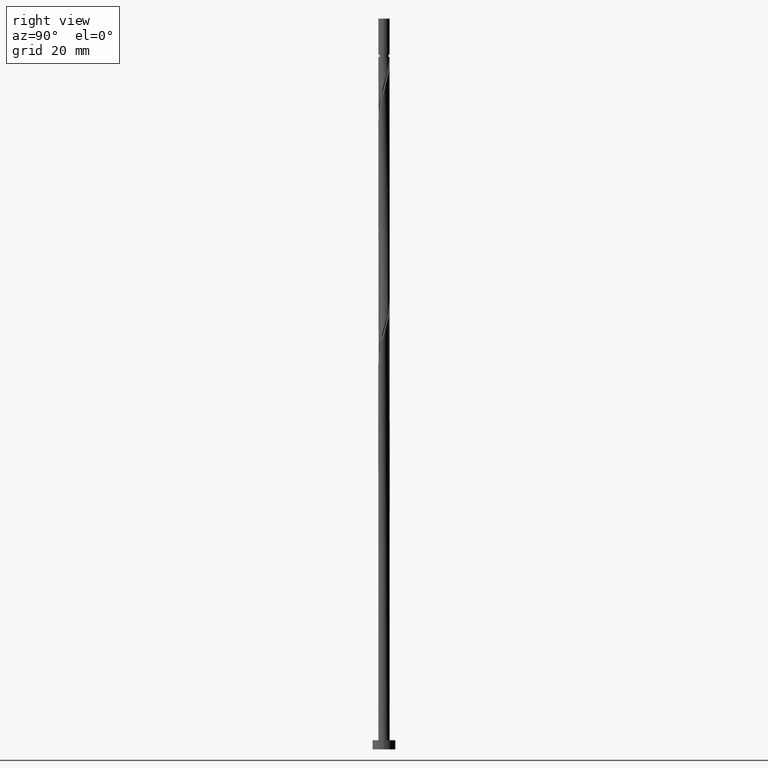
[diagram: clean part render]
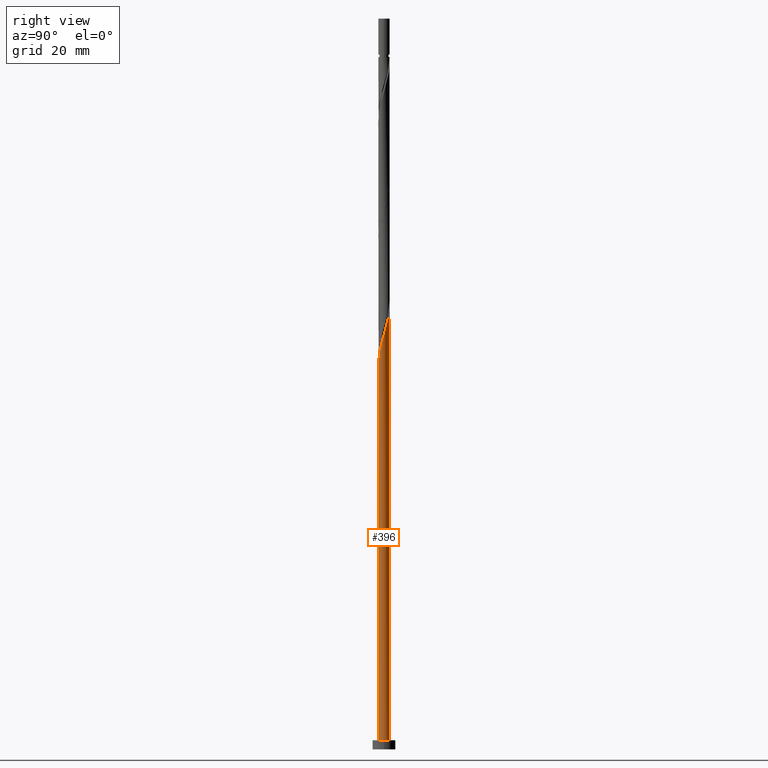
[diagram: same view with one face highlighted and labeled with its STEP entity id]
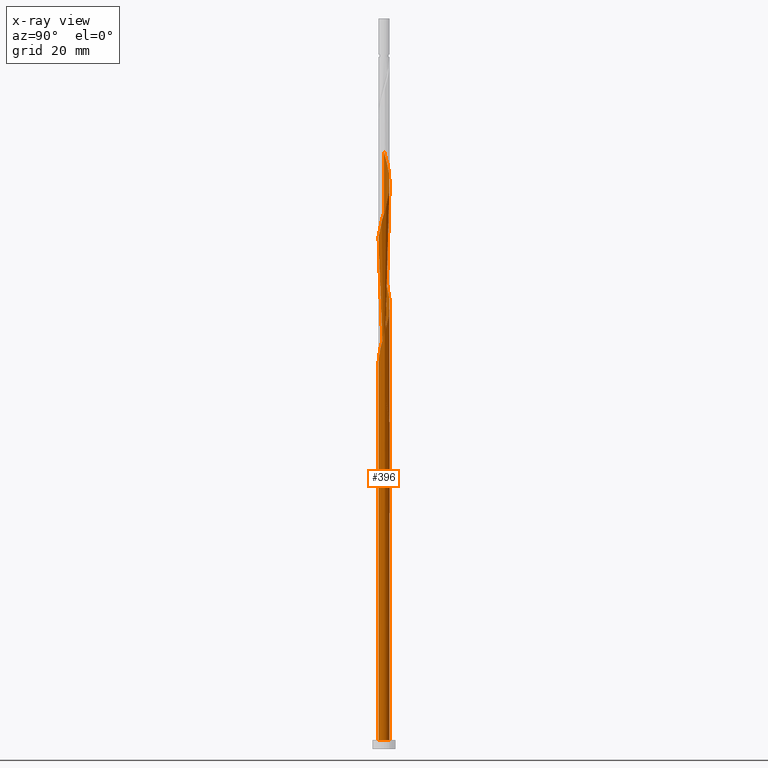
[diagram: x-ray of the same camera — body ghosted, the highlighted face saturated]
A machine part, right view. The second image highlights one B-rep face of the part: STEP entity #396.
The next image is the same camera in x-ray: the body ghosted, the highlighted face saturated — about 0% of this face is hidden behind the body in this view.
In plain terms, the highlighted cylindrical surface (bore or boss wall) has radius 1.25 mm, axis along (-0, -0, -1).
Its self-contained STEP definition (entity closure, byte-faithful):
#1 = DIRECTION ( 'NONE',  ( -0.000000000000000000, -0.000000000000000000, -1.000000000000000000 ) ) ;
#5 = CARTESIAN_POINT ( 'NONE',  ( -0.07261844913281328973, 1.260764399063406760, 97.67212520550600630 ) ) ;
#20 = CYLINDRICAL_SURFACE ( 'NONE', #1409, 1.250000000000000000 ) ;
#29 = CARTESIAN_POINT ( 'NONE',  ( -0.4530258272359607985, -1.165018283057042359, 109.1872767206574935 ) ) ;
#40 = CARTESIAN_POINT ( 'NONE',  ( 0.9052671870560901057, 0.8805064617251386894, 120.7024282358090090 ) ) ;
#51 = CARTESIAN_POINT ( 'NONE',  ( 1.088687779416463108, -0.6142140660626842497, 115.2478827812635558 ) ) ;
#62 = CARTESIAN_POINT ( 'NONE',  ( -1.116664842001303004, -0.5897965240134723786, 106.1569736903544623 ) ) ;
#65 = ORIENTED_EDGE ( 'NONE', *, *, #1062, .T. ) ;
#70 = CARTESIAN_POINT ( 'NONE',  ( 0.07261844913281340075, -1.260764399063406538, 111.0054585388393349 ) ) ;
#88 = CARTESIAN_POINT ( 'NONE',  ( -0.2487468592766557407, 1.225000000000001643, 124.9448524782332868 ) ) ;
#93 = CARTESIAN_POINT ( 'NONE',  ( 0.000000000000000000, 0.000000000000000000, 2.000000000000000000 ) ) ;
#97 = CARTESIAN_POINT ( 'NONE',  ( -0.2855214860250658293, -1.230153563632689906, 83.12667066005145955 ) ) ;
#105 = CARTESIAN_POINT ( 'NONE',  ( 1.176998429982672123, -0.4576843944450087465, 89.18727672065755030 ) ) ;
#116 = CARTESIAN_POINT ( 'NONE',  ( -0.5837932458153773929, 1.105298804007473379, 99.49030702368780510 ) ) ;
#131 = CARTESIAN_POINT ( 'NONE',  ( 0.6205301684468547130, 1.099883002481394367, 95.24788278126357000 ) ) ;
#132 = VERTEX_POINT ( 'NONE', #449 ) ;
#147 = CARTESIAN_POINT ( 'NONE',  ( -0.4248752694204985803, 1.189235600936596304, 72.21757975096052462 ) ) ;
#155 = CARTESIAN_POINT ( 'NONE',  ( 0.2855214860250660514, 1.230153563632689906, 123.1266706600514169 ) ) ;
#157 = ORIENTED_EDGE ( 'NONE', *, *, #1466, .T. ) ;
#161 = CARTESIAN_POINT ( 'NONE',  ( -0.8715441755302556492, 0.8960528723793547146, 74.03576156914233763 ) ) ;
#173 = CARTESIAN_POINT ( 'NONE',  ( -0.2487468592766556852, 1.225000000000001643, 71.61151914489992976 ) ) ;
#176 = CARTESIAN_POINT ( 'NONE',  ( 1.000377128850254982, -0.7707437376803588647, 114.6418221752029609 ) ) ;
#180 = DIRECTION ( 'NONE',  ( -0.000000000000000000, -0.000000000000000000, -1.000000000000000000 ) ) ;
#181 = CARTESIAN_POINT ( 'NONE',  ( -1.250000000000001776, 0.1431611592314025738, 76.94277137929441324 ) ) ;
#182 = CARTESIAN_POINT ( 'NONE',  ( -1.088687779416463108, 0.6142140660626840276, 101.9145494479302414 ) ) ;
#193 = DIRECTION ( 'NONE',  ( 1.000000000000000000, 0.000000000000000000, 0.000000000000000000 ) ) ;
#210 = CARTESIAN_POINT ( 'NONE',  ( 0.000000000000000000, 0.000000000000000000, 71.61151914489992976 ) ) ;
#212 = CARTESIAN_POINT ( 'NONE',  ( -0.9052671870560894396, -0.8805064617251390224, 80.70242823580903746 ) ) ;
#214 = CARTESIAN_POINT ( 'NONE',  ( 0.07261844913281356728, 1.260764399063405428, 72.21757975096055304 ) ) ;
#234 = CARTESIAN_POINT ( 'NONE',  ( -1.250000000000000000, 0.000000000000000000, 160.0000000000000000 ) ) ;
#242 = CARTESIAN_POINT ( 'NONE',  ( 0.7628986777514719098, 0.9901947321032669169, 94.64182217520296092 ) ) ;
#266 = CARTESIAN_POINT ( 'NONE',  ( 1.177130897255199482, 0.4205506517973474079, 118.8842464176272102 ) ) ;
#280 = VERTEX_POINT ( 'NONE', #602 ) ;
#288 = CARTESIAN_POINT ( 'NONE',  ( -0.2855214860250658293, -1.230153563632689906, 109.7933373267181025 ) ) ;
#294 = CARTESIAN_POINT ( 'NONE',  ( -1.250000000000001776, -1.533074122108355734E-15, 77.42873133226569848 ) ) ;
#297 = CARTESIAN_POINT ( 'NONE',  ( -1.247931635353088931, -0.07187929802779864652, 104.3387918721726635 ) ) ;
#299 = EDGE_CURVE ( 'NONE', #863, #132, #1534, .T. ) ;
#310 = CARTESIAN_POINT ( 'NONE',  ( -1.247931635353088931, -0.07187929802779864652, 77.67212520550597787 ) ) ;
#315 = CARTESIAN_POINT ( 'NONE',  ( -1.250000000000001554, 2.206131053765682578E-16, 130.7620646655990413 ) ) ;
#334 = CARTESIAN_POINT ( 'NONE',  ( -1.217632374089876679, 0.2826152889853174588, 129.7933373267181310 ) ) ;
#337 = ORIENTED_EDGE ( 'NONE', *, *, #1403, .F. ) ;
#340 = CARTESIAN_POINT ( 'NONE',  ( -1.177130897255197484, 0.4205506517973472413, 77.67212520550599208 ) ) ;
#342 = CARTESIAN_POINT ( 'NONE',  ( 1.258266318197082123, -0.1075461835256256993, 90.39939793277872582 ) ) ;
#352 = DIRECTION ( 'NONE',  ( -0.000000000000000000, -0.000000000000000000, -1.000000000000000000 ) ) ;
#354 = CARTESIAN_POINT ( 'NONE',  ( 1.247931635353088931, 0.07187929802779849386, 91.00545853883934910 ) ) ;
#360 = CARTESIAN_POINT ( 'NONE',  ( 0.4530258272359601879, 1.165018283057042581, 95.85394338732417907 ) ) ;
#391 = CARTESIAN_POINT ( 'NONE',  ( 0.4248752694204984137, -1.189235600936596748, 112.2175797509605246 ) ) ;
#396 = ADVANCED_FACE ( 'NONE', ( #1204 ), #20, .T. ) ;
#423 = CARTESIAN_POINT ( 'NONE',  ( 0.2487468592766559072, -1.225000000000001643, 111.6115191448999155 ) ) ;
#432 = CARTESIAN_POINT ( 'NONE',  ( -1.088687779416463108, 0.6142140660626840276, 128.5812161145968844 ) ) ;
#448 = CARTESIAN_POINT ( 'NONE',  ( -0.8715441755302556492, 0.8960528723793547146, 127.3690949024756947 ) ) ;
#449 = CARTESIAN_POINT ( 'NONE',  ( -1.250000000000000000, -1.634032661856966110E-15, 79.12764029086747541 ) ) ;
#451 = AXIS2_PLACEMENT_3D ( 'NONE', #676, #1020, #1012 ) ;
#458 = CARTESIAN_POINT ( 'NONE',  ( -1.010966014528694501, 0.7351514928693047013, 76.46000399338474551 ) ) ;
#461 = CARTESIAN_POINT ( 'NONE',  ( 0.5837932458153772819, -1.105298804007473601, 86.15697369035444808 ) ) ;
#465 = DIRECTION ( 'NONE',  ( -1.000000000000000000, 0.000000000000000000, 0.000000000000000000 ) ) ;
#474 = CARTESIAN_POINT ( 'NONE',  ( -1.250000000000001554, -0.03596940815477937120, 77.55082933698392367 ) ) ;
#482 = CARTESIAN_POINT ( 'NONE',  ( -0.8715441755302556492, 0.8960528723793547146, 100.7024282358090232 ) ) ;
#495 = CARTESIAN_POINT ( 'NONE',  ( -0.4248752694204985803, 1.189235600936596304, 98.88424641762719602 ) ) ;
#512 = CARTESIAN_POINT ( 'NONE',  ( -0.2487468592766557407, 1.225000000000001643, 98.27818581156660116 ) ) ;
#516 = CARTESIAN_POINT ( 'NONE',  ( -0.5837932458153773929, 1.105298804007473379, 72.82364035702117633 ) ) ;
#520 = CARTESIAN_POINT ( 'NONE',  ( 0.8715441755302556492, -0.8960528723793547146, 114.0357615691423661 ) ) ;
#528 = CARTESIAN_POINT ( 'NONE',  ( 0.1064515184461263669, 1.245458981348048333, 123.7327312661120544 ) ) ;
#540 = LINE ( 'NONE', #780, #983 ) ;
#547 = CARTESIAN_POINT ( 'NONE',  ( 0.5837932458153772819, -1.105298804007473601, 112.8236403570211195 ) ) ;
#564 = CARTESIAN_POINT ( 'NONE',  ( -1.000377128850254982, 0.7707437376803587537, 127.9751555085362895 ) ) ;
#572 = CARTESIAN_POINT ( 'NONE',  ( -1.176998429982671679, 0.4576843944450091350, 129.1872767206575077 ) ) ;
#580 = CARTESIAN_POINT ( 'NONE',  ( -0.4248752694204985803, 1.189235600936596304, 125.5509130842938674 ) ) ;
#582 = CARTESIAN_POINT ( 'NONE',  ( -0.1064515184461262004, -1.245458981348048333, 83.73273126611204020 ) ) ;
#585 = CARTESIAN_POINT ( 'NONE',  ( -0.7427112222102564276, 1.021362007078349787, 126.7630342964150998 ) ) ;
#602 = CARTESIAN_POINT ( 'NONE',  ( -1.250000000000000000, 0.000000000000000000, 2.000000000000000000 ) ) ;
#632 = ORIENTED_EDGE ( 'NONE', *, *, #994, .F. ) ;
#636 = CARTESIAN_POINT ( 'NONE',  ( -1.088687779416463108, 0.6142140660626840276, 75.24788278126357000 ) ) ;
#642 = CARTESIAN_POINT ( 'NONE',  ( -1.250000000000001776, -1.533074122108355734E-15, 77.42873133226569848 ) ) ;
#644 = CARTESIAN_POINT ( 'NONE',  ( -1.217632374089876679, 0.2826152889853174588, 103.1266706600514311 ) ) ;
#647 = VERTEX_POINT ( 'NONE', #669 ) ;
#650 = CARTESIAN_POINT ( 'NONE',  ( -1.000377128850254982, 0.7707437376803587537, 74.64182217520296092 ) ) ;
#653 = CARTESIAN_POINT ( 'NONE',  ( -1.237596952509095960, -0.2513047795812228258, 104.9448524782332584 ) ) ;
#663 = CARTESIAN_POINT ( 'NONE',  ( 1.247931635353088931, 0.07187929802779849386, 117.6721252055059921 ) ) ;
#667 = CARTESIAN_POINT ( 'NONE',  ( 0.2487468592766561293, 1.224999999999999423, 71.61151914489992976 ) ) ;
#669 = CARTESIAN_POINT ( 'NONE',  ( -0.2487468592766556852, 1.225000000000001643, 71.61151914489992976 ) ) ;
#672 = CARTESIAN_POINT ( 'NONE',  ( 1.217632374089876901, -0.2826152889853174033, 116.4600039933847881 ) ) ;
#676 = CARTESIAN_POINT ( 'NONE',  ( 0.000000000000000000, 0.000000000000000000, 2.000000000000000000 ) ) ;
#689 = EDGE_CURVE ( 'NONE', #647, #746, #1381, .T. ) ;
#702 = CARTESIAN_POINT ( 'NONE',  ( -1.010966014528696055, -0.7351514928693059225, 80.09636762974841417 ) ) ;
#707 = CARTESIAN_POINT ( 'NONE',  ( 1.000377128850254982, -0.7707437376803588647, 87.97515550853628952 ) ) ;
#725 = CARTESIAN_POINT ( 'NONE',  ( 0.9052671870560901057, 0.8805064617251386894, 94.03576156914235185 ) ) ;
#729 = CARTESIAN_POINT ( 'NONE',  ( 0.000000000000000000, 0.000000000000000000, 160.0000000000000000 ) ) ;
#745 = CARTESIAN_POINT ( 'NONE',  ( 0.2855214860250660514, 1.230153563632689906, 96.46000399338477393 ) ) ;
#746 = VERTEX_POINT ( 'NONE', #294 ) ;
#761 = CARTESIAN_POINT ( 'NONE',  ( 1.116664842001303004, 0.5897965240134721565, 119.4903070236878193 ) ) ;
#780 = CARTESIAN_POINT ( 'NONE',  ( -1.250000000000000000, 0.000000000000000000, 160.0000000000000000 ) ) ;
#795 = DIRECTION ( 'NONE',  ( 0.000000000000000000, -0.000000000000000000, -1.000000000000000000 ) ) ;
#804 = CARTESIAN_POINT ( 'NONE',  ( -0.9052671870560881073, 0.8805064617251381343, 75.85394338732417907 ) ) ;
#806 = ORIENTED_EDGE ( 'NONE', *, *, #689, .F. ) ;
#821 = CARTESIAN_POINT ( 'NONE',  ( -0.4530258272359594662, 1.165018283057040582, 74.03576156914233763 ) ) ;
#822 = CARTESIAN_POINT ( 'NONE',  ( -1.177130897255199482, -0.4205506517973475189, 78.88424641762719602 ) ) ;
#825 = CARTESIAN_POINT ( 'NONE',  ( -0.6205301684468541579, 1.099883002481392591, 74.64182217520296092 ) ) ;
#841 = CARTESIAN_POINT ( 'NONE',  ( 1.116664842001303004, 0.5897965240134721565, 92.82364035702114791 ) ) ;
#842 = AXIS2_PLACEMENT_3D ( 'NONE', #93, #1264, #193 ) ;
#862 = CARTESIAN_POINT ( 'NONE',  ( 0.4530258272359601879, 1.165018283057042581, 122.5206100539908505 ) ) ;
#863 = VERTEX_POINT ( 'NONE', #1492 ) ;
#867 = CARTESIAN_POINT ( 'NONE',  ( -0.7427112222102564276, 1.021362007078349787, 73.42970096308172856 ) ) ;
#870 = CARTESIAN_POINT ( 'NONE',  ( 1.176998429982672123, -0.4576843944450087465, 115.8539433873241364 ) ) ;
#894 = CARTESIAN_POINT ( 'NONE',  ( 1.237596952509095960, 0.2513047795812227148, 118.2781858115666012 ) ) ;
#908 = CARTESIAN_POINT ( 'NONE',  ( -0.2855214860250653852, 1.230153563632688574, 73.42970096308174277 ) ) ;
#911 = CARTESIAN_POINT ( 'NONE',  ( -1.250000000000001776, -1.533074122108355734E-15, 77.42873133226569848 ) ) ;
#913 = CARTESIAN_POINT ( 'NONE',  ( -0.7628986777514707995, 0.9901947321032651406, 75.24788278126354157 ) ) ;
#916 = CARTESIAN_POINT ( 'NONE',  ( -1.116664842001303004, -0.5897965240134723786, 79.49030702368780510 ) ) ;
#918 = EDGE_CURVE ( 'NONE', #280, #1056, #1451, .T. ) ;
#922 = CARTESIAN_POINT ( 'NONE',  ( -0.1064515184461258396, 1.245458981348045668, 72.82364035702114791 ) ) ;
#924 = CARTESIAN_POINT ( 'NONE',  ( 0.7427112222102564276, -1.021362007078349787, 86.76303429641508558 ) ) ;
#932 = CARTESIAN_POINT ( 'NONE',  ( 0.4248752694204984137, -1.189235600936596748, 85.55091308429386743 ) ) ;
#972 = CARTESIAN_POINT ( 'NONE',  ( 1.010966014528696499, 0.7351514928693054785, 120.0963676297484000 ) ) ;
#976 = CARTESIAN_POINT ( 'NONE',  ( -1.176998429982671679, 0.4576843944450091350, 75.85394338732416486 ) ) ;
#983 = VECTOR ( 'NONE', #180, 1000.000000000000000 ) ;
#990 = CARTESIAN_POINT ( 'NONE',  ( -0.07261844913281328973, 1.260764399063406760, 124.3387918721726635 ) ) ;
#994 = EDGE_CURVE ( 'NONE', #746, #280, #540, .T. ) ;
#1000 = CARTESIAN_POINT ( 'NONE',  ( -1.176998429982671679, 0.4576843944450091350, 102.5206100539908505 ) ) ;
#1009 = CARTESIAN_POINT ( 'NONE',  ( 0.7427112222102564276, -1.021362007078349787, 113.4297009630817143 ) ) ;
#1012 = DIRECTION ( 'NONE',  ( 1.000000000000000000, 0.000000000000000000, 0.000000000000000000 ) ) ;
#1017 = CARTESIAN_POINT ( 'NONE',  ( -1.116664842001301006, 0.5897965240134721565, 77.06606459944538301 ) ) ;
#1019 = ORIENTED_EDGE ( 'NONE', *, *, #299, .F. ) ;
#1020 = DIRECTION ( 'NONE',  ( 0.000000000000000000, 0.000000000000000000, 1.000000000000000000 ) ) ;
#1025 = CARTESIAN_POINT ( 'NONE',  ( -1.250000000000000222, 0.03596940815477767117, 79.00554228614926444 ) ) ;
#1041 = CARTESIAN_POINT ( 'NONE',  ( -0.5837932458153773929, 1.105298804007473379, 126.1569736903545049 ) ) ;
#1043 = CARTESIAN_POINT ( 'NONE',  ( 0.07261844913281340075, -1.260764399063406538, 84.33879187217264928 ) ) ;
#1044 = AXIS2_PLACEMENT_3D ( 'NONE', #210, #795, #465 ) ;
#1050 = CARTESIAN_POINT ( 'NONE',  ( 0.8715441755302556492, -0.8960528723793547146, 87.36909490247569465 ) ) ;
#1056 = VERTEX_POINT ( 'NONE', #1244 ) ;
#1058 =( BOUNDED_CURVE ( )  B_SPLINE_CURVE ( 2, ( #911, #474, #310, #1386, #822, #916, #702, #212, #1160, #1278, #1166, #97, #582, #1043, #1513, #932, #461, #924, #1050, #707, #1171, #105, #1406, #342, #354, #1181, #1095, #841, #1322, #725, #242, #131, #360, #745, #1068, #5, #512, #495, #116, #1064, #482, #1302, #182, #1000, #644, #1472, #297, #653, #1356, #62, #1125, #1103, #1366, #1116, #29, #288, #1240, #70, #423, #391, #547, #1009, #520, #176, #51, #870, #672, #1335, #663, #894, #266, #761, #972, #40, #1444, #1220, #862, #155, #528, #990, #88, #580, #1041, #585, #448, #564, #432, #572, #334, #1502, #315 ),
 .UNSPECIFIED., .F., .T. ) 
 B_SPLINE_CURVE_WITH_KNOTS ( ( 3, 2, 2, 2, 2, 2, 2, 2, 2, 2, 2, 2, 2, 2, 2, 2, 2, 2, 2, 2, 2, 2, 2, 2, 2, 2, 2, 2, 2, 2, 2, 2, 2, 2, 2, 2, 2, 2, 2, 2, 2, 2, 2, 2, 2, 3 ),
 ( 0.05452521624175134252, 0.05681818181818176772, 0.06818181818181823228, 0.07954545454545458583, 0.09090909090909093937, 0.1022727272727272929, 0.1136363636363636465, 0.1250000000000000000, 0.1363636363636363535, 0.1477272727272727071, 0.1590909090909090606, 0.1704545454545454142, 0.1818181818181817677, 0.1931818181818182323, 0.2045454545454545858, 0.2159090909090909394, 0.2272727272727272929, 0.2386363636363636465, 0.2500000000000000000, 0.2613636363636363535, 0.2727272727272727071, 0.2840909090909090606, 0.2954545454545454142, 0.3068181818181817677, 0.3181818181818182323, 0.3295454545454545858, 0.3409090909090909394, 0.3522727272727272929, 0.3636363636363636465, 0.3750000000000000000, 0.3863636363636363535, 0.3977272727272727071, 0.4090909090909090606, 0.4204545454545454142, 0.4318181818181817677, 0.4431818181818182323, 0.4545454545454545858, 0.4659090909090909394, 0.4772727272727272929, 0.4886363636363636465, 0.5000000000000000000, 0.5113636363636363535, 0.5227272727272727071, 0.5340909090909091717, 0.5454545454545454142, 0.5545252162417512176 ),
 .UNSPECIFIED. ) 
 CURVE ( )  GEOMETRIC_REPRESENTATION_ITEM ( )  RATIONAL_B_SPLINE_CURVE ( ( 0.9061101570135762229, 0.9072237824201583312, 0.9090909090909358170, 0.8998376744372380553, 0.9090909090909358170, 0.8998376744372380553, 0.9090909090909358170, 0.8998376744372380553, 0.9090909090909358170, 0.8998376744372380553, 0.9090909090909358170, 0.8998376744372380553, 0.9090909090909358170, 0.8998376744372380553, 0.9090909090909358170, 0.8998376744372380553, 0.9090909090909358170, 0.8998376744372380553, 0.9090909090909358170, 0.8998376744372380553, 0.9090909090909358170, 0.8998376744372380553, 0.9090909090909358170, 0.8998376744372380553, 0.9090909090909358170, 0.8998376744372380553, 0.9090909090909358170, 0.8998376744372380553, 0.9090909090909358170, 0.8998376744372380553, 0.9090909090909358170, 0.8998376744372380553, 0.9090909090909358170, 0.8998376744372380553, 0.9090909090909358170, 0.8998376744372380553, 0.9090909090909358170, 0.8998376744372380553, 0.9090909090909358170, 0.8998376744372380553, 0.9090909090909358170, 0.8998376744372380553, 0.9090909090909358170, 0.8998376744372380553, 0.9090909090909358170, 0.8998376744372380553, 0.9090909090909358170, 0.8998376744372380553, 0.9090909090909358170, 0.8998376744372380553, 0.9090909090909358170, 0.8998376744372380553, 0.9090909090909358170, 0.8998376744372380553, 0.9090909090909358170, 0.8998376744372380553, 0.9090909090909358170, 0.8998376744372380553, 0.9090909090909358170, 0.8998376744372380553, 0.9090909090909358170, 0.8998376744372380553, 0.9090909090909358170, 0.8998376744372380553, 0.9090909090909358170, 0.8998376744372380553, 0.9090909090909358170, 0.8998376744372380553, 0.9090909090909358170, 0.8998376744372380553, 0.9090909090909358170, 0.8998376744372380553, 0.9090909090909358170, 0.8998376744372380553, 0.9090909090909358170, 0.8998376744372380553, 0.9090909090909358170, 0.8998376744372380553, 0.9090909090909358170, 0.8998376744372380553, 0.9090909090909358170, 0.8998376744372380553, 0.9090909090909358170, 0.8998376744372380553, 0.9090909090909358170, 0.8998376744372380553, 0.9090909090909358170, 0.8998376744372380553, 0.9090909090909358170, 0.9017048011080156522, 0.9061101570135761119 ) ) 
 REPRESENTATION_ITEM ( '' )  );
#1062 = EDGE_CURVE ( 'NONE', #1056, #280, #1235, .T. ) ;
#1064 = CARTESIAN_POINT ( 'NONE',  ( -0.7427112222102564276, 1.021362007078349787, 100.0963676297484000 ) ) ;
#1068 = CARTESIAN_POINT ( 'NONE',  ( 0.1064515184461263669, 1.245458981348048333, 97.06606459944538301 ) ) ;
#1074 = VECTOR ( 'NONE', #352, 1000.000000000000000 ) ;
#1078 = VERTEX_POINT ( 'NONE', #667 ) ;
#1095 = CARTESIAN_POINT ( 'NONE',  ( 1.177130897255199482, 0.4205506517973474079, 92.21757975096053883 ) ) ;
#1103 = CARTESIAN_POINT ( 'NONE',  ( -0.9052671870560894396, -0.8805064617251390224, 107.3690949024756804 ) ) ;
#1116 = CARTESIAN_POINT ( 'NONE',  ( -0.6205301684468550460, -1.099883002481394145, 108.5812161145968844 ) ) ;
#1125 = CARTESIAN_POINT ( 'NONE',  ( -1.010966014528696055, -0.7351514928693059225, 106.7630342964150998 ) ) ;
#1153 = CIRCLE ( 'NONE', #1044, 1.250000000000000000 ) ;
#1160 = CARTESIAN_POINT ( 'NONE',  ( -0.7628986777514721318, -0.9901947321032666949, 81.30848884186964654 ) ) ;
#1166 = CARTESIAN_POINT ( 'NONE',  ( -0.4530258272359607985, -1.165018283057042359, 82.52061005399083626 ) ) ;
#1171 = CARTESIAN_POINT ( 'NONE',  ( 1.088687779416463108, -0.6142140660626842497, 88.58121611459689859 ) ) ;
#1172 = ORIENTED_EDGE ( 'NONE', *, *, #918, .T. ) ;
#1181 = CARTESIAN_POINT ( 'NONE',  ( 1.237596952509095960, 0.2513047795812227148, 91.61151914489991555 ) ) ;
#1188 = EDGE_LOOP ( 'NONE', ( #1019, #337, #1348, #1172, #65, #632, #806, #157, #1475 ) ) ;
#1191 = DIRECTION ( 'NONE',  ( -1.000000000000000000, 0.000000000000000000, 0.000000000000000000 ) ) ;
#1204 = FACE_OUTER_BOUND ( 'NONE', #1188, .T. ) ;
#1220 = CARTESIAN_POINT ( 'NONE',  ( 0.6205301684468547130, 1.099883002481394367, 121.9145494479301988 ) ) ;
#1235 = CIRCLE ( 'NONE', #451, 1.250000000000000000 ) ;
#1240 = CARTESIAN_POINT ( 'NONE',  ( -0.1064515184461262004, -1.245458981348048333, 110.3993979327787400 ) ) ;
#1244 = CARTESIAN_POINT ( 'NONE',  ( 1.250000000000000000, 0.000000000000000000, 2.000000000000000000 ) ) ;
#1257 = CARTESIAN_POINT ( 'NONE',  ( -1.247931635353087598, 0.07187929802779884081, 78.88424641762719602 ) ) ;
#1264 = DIRECTION ( 'NONE',  ( 0.000000000000000000, 0.000000000000000000, 1.000000000000000000 ) ) ;
#1278 = CARTESIAN_POINT ( 'NONE',  ( -0.6205301684468550460, -1.099883002481394145, 81.91454944793024140 ) ) ;
#1302 = CARTESIAN_POINT ( 'NONE',  ( -1.000377128850254982, 0.7707437376803587537, 101.3084888418696181 ) ) ;
#1322 = CARTESIAN_POINT ( 'NONE',  ( 1.010966014528696499, 0.7351514928693054785, 93.42970096308174277 ) ) ;
#1335 = CARTESIAN_POINT ( 'NONE',  ( 1.258266318197082123, -0.1075461835256256993, 117.0660645994453688 ) ) ;
#1348 = ORIENTED_EDGE ( 'NONE', *, *, #994, .T. ) ;
#1356 = CARTESIAN_POINT ( 'NONE',  ( -1.177130897255199482, -0.4205506517973475189, 105.5509130842938674 ) ) ;
#1366 = CARTESIAN_POINT ( 'NONE',  ( -0.7628986777514721318, -0.9901947321032666949, 107.9751555085363037 ) ) ;
#1381 =( BOUNDED_CURVE ( )  B_SPLINE_CURVE ( 2, ( #173, #147, #516, #867, #161, #650, #636, #976, #1487, #181, #642 ),
 .UNSPECIFIED., .F., .T. ) 
 B_SPLINE_CURVE_WITH_KNOTS ( ( 3, 2, 2, 2, 2, 3 ),
 ( 0.000000000000000000, 0.01136363636363635354, 0.02272727272727270709, 0.03409090909090906063, 0.04545454545454541417, 0.05452521624175133558 ),
 .UNSPECIFIED. ) 
 CURVE ( )  GEOMETRIC_REPRESENTATION_ITEM ( )  RATIONAL_B_SPLINE_CURVE ( ( 0.9090909090909358170, 0.8998376744372380553, 0.9090909090909358170, 0.8998376744372380553, 0.9090909090909358170, 0.8998376744372380553, 0.9090909090909358170, 0.8998376744372380553, 0.9090909090909358170, 0.9017048011080155412, 0.9061101570135762229 ) ) 
 REPRESENTATION_ITEM ( '' )  );
#1386 = CARTESIAN_POINT ( 'NONE',  ( -1.237596952509095960, -0.2513047795812228258, 78.27818581156658695 ) ) ;
#1397 = CARTESIAN_POINT ( 'NONE',  ( 0.2487468592766561293, 1.224999999999999201, 71.61151914489992976 ) ) ;
#1403 = EDGE_CURVE ( 'NONE', #746, #863, #1058, .T. ) ;
#1404 = CARTESIAN_POINT ( 'NONE',  ( -1.237596952509093962, 0.2513047795812228258, 78.27818581156660116 ) ) ;
#1406 = CARTESIAN_POINT ( 'NONE',  ( 1.217632374089876901, -0.2826152889853174033, 89.79333732671811674 ) ) ;
#1409 = AXIS2_PLACEMENT_3D ( 'NONE', #729, #1, #1191 ) ;
#1426 = EDGE_CURVE ( 'NONE', #132, #1078, #1432, .T. ) ;
#1432 =( BOUNDED_CURVE ( )  B_SPLINE_CURVE ( 2, ( #1511, #1025, #1257, #1404, #340, #1017, #458, #804, #913, #825, #821, #908, #922, #214, #1397 ),
 .UNSPECIFIED., .F., .T. ) 
 B_SPLINE_CURVE_WITH_KNOTS ( ( 3, 2, 2, 2, 2, 2, 2, 3 ),
 ( 0.9295252162417512176, 0.9318181818181817677, 0.9431818181818182323, 0.9545454545454545858, 0.9659090909090909394, 0.9772727272727272929, 0.9886363636363636465, 1.000000000000000000 ),
 .UNSPECIFIED. ) 
 CURVE ( )  GEOMETRIC_REPRESENTATION_ITEM ( )  RATIONAL_B_SPLINE_CURVE ( ( 0.9061101570135700056, 0.9072237824201522249, 0.9090909090909298218, 0.8998376744372318381, 0.9090909090909298218, 0.8998376744372318381, 0.9090909090909298218, 0.8998376744372318381, 0.9090909090909298218, 0.8998376744372318381, 0.9090909090909298218, 0.8998376744372318381, 0.9090909090909298218, 0.8998376744372318381, 0.9090909090909298218 ) ) 
 REPRESENTATION_ITEM ( '' )  );
#1444 = CARTESIAN_POINT ( 'NONE',  ( 0.7628986777514719098, 0.9901947321032669169, 121.3084888418696181 ) ) ;
#1451 = CIRCLE ( 'NONE', #842, 1.250000000000000000 ) ;
#1466 = EDGE_CURVE ( 'NONE', #647, #1078, #1153, .T. ) ;
#1472 = CARTESIAN_POINT ( 'NONE',  ( -1.258266318197082123, 0.1075461835256258242, 103.7327312661120260 ) ) ;
#1475 = ORIENTED_EDGE ( 'NONE', *, *, #1426, .F. ) ;
#1487 = CARTESIAN_POINT ( 'NONE',  ( -1.217632374089876679, 0.2826152889853174588, 76.46000399338478815 ) ) ;
#1492 = CARTESIAN_POINT ( 'NONE',  ( -1.250000000000001554, 2.206131053765682578E-16, 130.7620646655990413 ) ) ;
#1502 = CARTESIAN_POINT ( 'NONE',  ( -1.250000000000000888, 0.1431611592314058490, 130.2761047126276992 ) ) ;
#1511 = CARTESIAN_POINT ( 'NONE',  ( -1.250000000000000000, -1.634032661856966110E-15, 79.12764029086747541 ) ) ;
#1513 = CARTESIAN_POINT ( 'NONE',  ( 0.2487468592766559072, -1.225000000000001643, 84.94485247823327256 ) ) ;
#1534 = LINE ( 'NONE', #234, #1074 ) ;